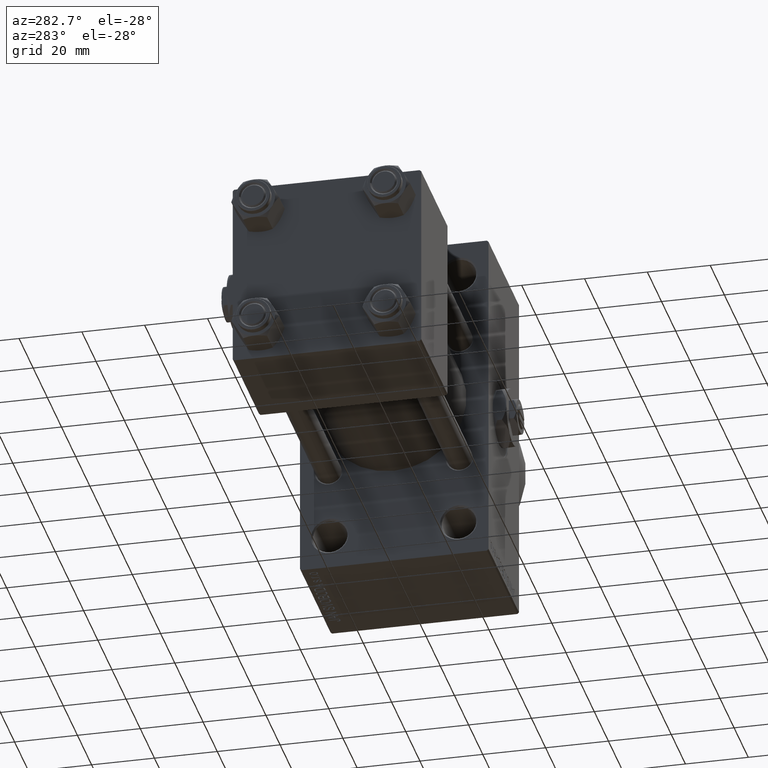
[diagram: clean part render]
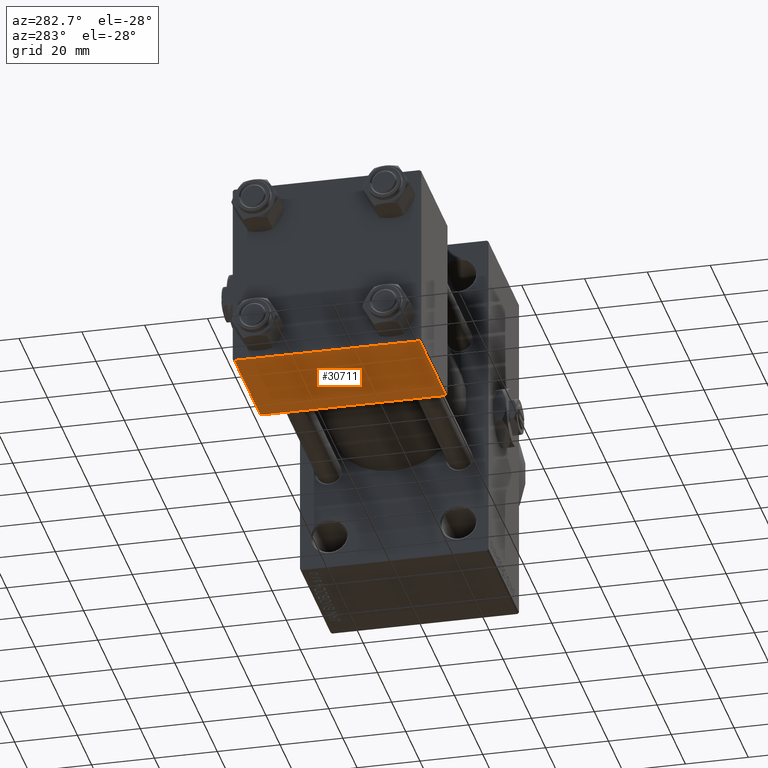
[diagram: same view with one face highlighted and labeled with its STEP entity id]
A machine part, auxiliary view. The second image highlights one B-rep face of the part: STEP entity #30711.
In plain terms, the highlighted planar face has unit normal (0, 0, -1).
Its self-contained STEP definition (entity closure, byte-faithful):
#416 = CARTESIAN_POINT ( 'NONE',  ( 37.00000000000000000, 29.49999999999997868, -30.00000000000000000 ) ) ;
#1185 = CARTESIAN_POINT ( 'NONE',  ( 0.000000000000000000, -29.50000000000001066, -30.00000000000000711 ) ) ;
#1952 = EDGE_CURVE ( 'NONE', #29257, #15239, #40371, .T. ) ;
#4778 = DIRECTION ( 'NONE',  ( 0.000000000000000000, -1.000000000000000000, -1.156482317317871725E-16 ) ) ;
#5707 = DIRECTION ( 'NONE',  ( 0.000000000000000000, -1.000000000000000000, -1.156482317317871725E-16 ) ) ;
#10098 = VECTOR ( 'NONE', #5707, 1000.000000000000000 ) ;
#12878 = PLANE ( 'NONE',  #23190 ) ;
#14147 = EDGE_CURVE ( 'NONE', #36841, #15239, #15555, .T. ) ;
#15239 = VERTEX_POINT ( 'NONE', #36037 ) ;
#15555 = LINE ( 'NONE', #1185, #41748 ) ;
#16014 = CARTESIAN_POINT ( 'NONE',  ( 0.000000000000000000, 29.49999999999997868, -30.00000000000000000 ) ) ;
#17058 = EDGE_LOOP ( 'NONE', ( #41914, #17229, #46042, #24956 ) ) ;
#17229 = ORIENTED_EDGE ( 'NONE', *, *, #29174, .T. ) ;
#17326 = EDGE_CURVE ( 'NONE', #28879, #36841, #26799, .T. ) ;
#19974 = LINE ( 'NONE', #416, #44492 ) ;
#23104 = CARTESIAN_POINT ( 'NONE',  ( 37.00000000000000000, 29.99999999999999289, -30.00000000000000000 ) ) ;
#23190 = AXIS2_PLACEMENT_3D ( 'NONE', #39610, #47028, #43570 ) ;
#24547 = CARTESIAN_POINT ( 'NONE',  ( 37.00000000000000000, -29.50000000000000000, -30.00000000000000711 ) ) ;
#24956 = ORIENTED_EDGE ( 'NONE', *, *, #14147, .T. ) ;
#26799 = LINE ( 'NONE', #23104, #38684 ) ;
#27968 = FACE_OUTER_BOUND ( 'NONE', #17058, .T. ) ;
#28714 = CARTESIAN_POINT ( 'NONE',  ( 0.000000000000000000, 29.99999999999999289, -30.00000000000000000 ) ) ;
#28879 = VERTEX_POINT ( 'NONE', #31188 ) ;
#29174 = EDGE_CURVE ( 'NONE', #29257, #28879, #19974, .T. ) ;
#29257 = VERTEX_POINT ( 'NONE', #16014 ) ;
#30664 = DIRECTION ( 'NONE',  ( -1.000000000000000000, 0.000000000000000000, 0.000000000000000000 ) ) ;
#30711 = ADVANCED_FACE ( 'NONE', ( #27968 ), #12878, .T. ) ;
#31188 = CARTESIAN_POINT ( 'NONE',  ( 37.00000000000000000, 29.49999999999997868, -30.00000000000000000 ) ) ;
#36037 = CARTESIAN_POINT ( 'NONE',  ( 0.000000000000000000, -29.50000000000000000, -30.00000000000000711 ) ) ;
#36841 = VERTEX_POINT ( 'NONE', #24547 ) ;
#38684 = VECTOR ( 'NONE', #4778, 1000.000000000000000 ) ;
#39610 = CARTESIAN_POINT ( 'NONE',  ( 37.00000000000000000, 29.99999999999999289, -30.00000000000000000 ) ) ;
#40371 = LINE ( 'NONE', #28714, #10098 ) ;
#41748 = VECTOR ( 'NONE', #30664, 1000.000000000000000 ) ;
#41914 = ORIENTED_EDGE ( 'NONE', *, *, #1952, .F. ) ;
#43570 = DIRECTION ( 'NONE',  ( 0.000000000000000000, 1.000000000000000000, 1.156482317317871725E-16 ) ) ;
#44492 = VECTOR ( 'NONE', #45726, 1000.000000000000000 ) ;
#45726 = DIRECTION ( 'NONE',  ( 1.000000000000000000, 0.000000000000000000, 0.000000000000000000 ) ) ;
#46042 = ORIENTED_EDGE ( 'NONE', *, *, #17326, .T. ) ;
#47028 = DIRECTION ( 'NONE',  ( 0.000000000000000000, 1.156482317317871725E-16, -1.000000000000000000 ) ) ;